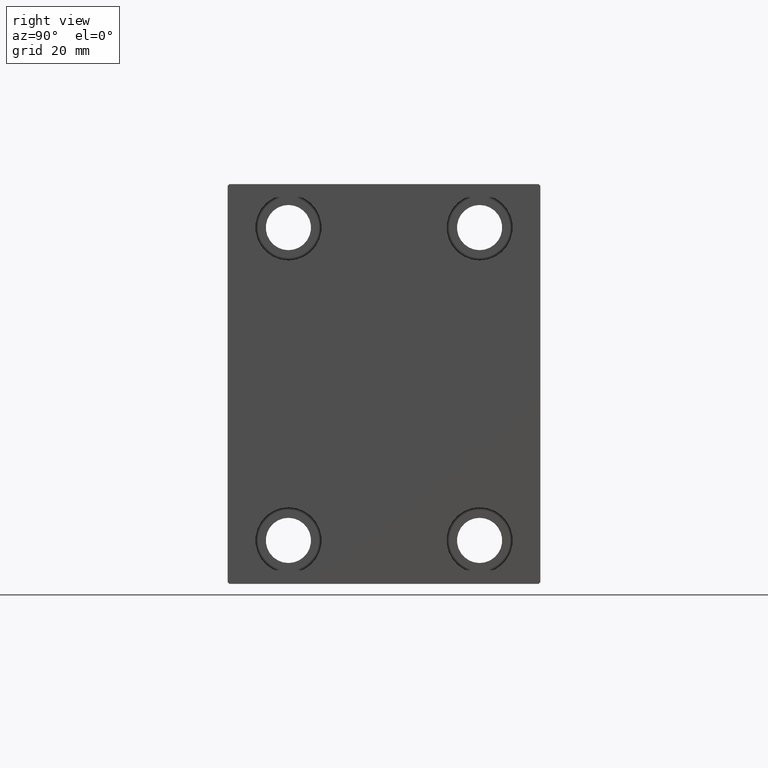
[diagram: clean part render]
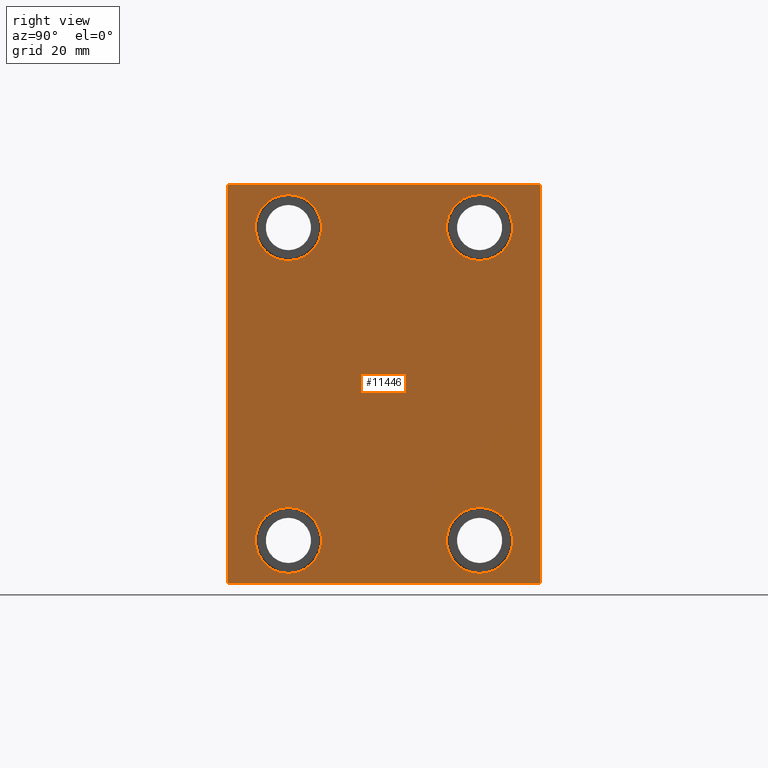
[diagram: same view with one face highlighted and labeled with its STEP entity id]
A machine part, right view. The second image highlights one B-rep face of the part: STEP entity #11446.
In plain terms, the highlighted planar face has unit normal (1, 0, 0).
Its self-contained STEP definition (entity closure, byte-faithful):
#213 = CARTESIAN_POINT ( 'NONE',  ( 138.0000000000000000, -27.50000000000000000, -44.99999999999998579 ) ) ;
#312 = EDGE_CURVE ( 'NONE', #6435, #19124, #43789, .T. ) ;
#348 = CARTESIAN_POINT ( 'NONE',  ( 138.0000000000000000, 27.50000000000001066, 35.50000000000000711 ) ) ;
#794 = VECTOR ( 'NONE', #43794, 1000.000000000000000 ) ;
#1170 = CARTESIAN_POINT ( 'NONE',  ( 138.0000000000000000, -51.00000000000000711, 51.00000000000000711 ) ) ;
#1587 = LINE ( 'NONE', #15206, #11870 ) ;
#1802 = VERTEX_POINT ( 'NONE', #26757 ) ;
#1914 = CARTESIAN_POINT ( 'NONE',  ( 138.0000000000000000, 51.00000000000000000, 51.00000000000000000 ) ) ;
#2582 = EDGE_LOOP ( 'NONE', ( #33679, #43405 ) ) ;
#2634 = VECTOR ( 'NONE', #11211, 1000.000000000000114 ) ;
#2945 = EDGE_CURVE ( 'NONE', #19124, #6435, #31014, .T. ) ;
#3325 = FACE_BOUND ( 'NONE', #14900, .T. ) ;
#3845 = EDGE_CURVE ( 'NONE', #40996, #29335, #5996, .T. ) ;
#4017 = DIRECTION ( 'NONE',  ( -1.000000000000000000, -0.000000000000000000, -0.000000000000000000 ) ) ;
#4661 = CIRCLE ( 'NONE', #12495, 9.500000000000001776 ) ;
#5176 = EDGE_CURVE ( 'NONE', #20165, #24768, #1587, .T. ) ;
#5611 = AXIS2_PLACEMENT_3D ( 'NONE', #5682, #8793, #36427 ) ;
#5639 = DIRECTION ( 'NONE',  ( 0.000000000000000000, 1.000000000000000000, 0.000000000000000000 ) ) ;
#5682 = CARTESIAN_POINT ( 'NONE',  ( 138.0000000000000000, -27.49999999999998934, 45.00000000000000711 ) ) ;
#5831 = ORIENTED_EDGE ( 'NONE', *, *, #34520, .T. ) ;
#5996 = LINE ( 'NONE', #22947, #34600 ) ;
#6069 = CARTESIAN_POINT ( 'NONE',  ( 138.0000000000000000, 45.00000000000001421, -57.50000000000000711 ) ) ;
#6435 = VERTEX_POINT ( 'NONE', #33123 ) ;
#7000 = EDGE_CURVE ( 'NONE', #26382, #8932, #18121, .T. ) ;
#7462 = CARTESIAN_POINT ( 'NONE',  ( 138.0000000000000000, -45.00000000000000000, -57.00000000000000711 ) ) ;
#8459 = VERTEX_POINT ( 'NONE', #9080 ) ;
#8606 = CARTESIAN_POINT ( 'NONE',  ( 138.0000000000000000, -27.50000000000000000, -44.99999999999998579 ) ) ;
#8793 = DIRECTION ( 'NONE',  ( -1.000000000000000000, -0.000000000000000000, -0.000000000000000000 ) ) ;
#8810 = DIRECTION ( 'NONE',  ( 0.000000000000000000, 0.000000000000000000, 1.000000000000000000 ) ) ;
#8932 = VERTEX_POINT ( 'NONE', #24611 ) ;
#9080 = CARTESIAN_POINT ( 'NONE',  ( 138.0000000000000000, -27.49999999999998934, 54.50000000000000711 ) ) ;
#9127 = EDGE_LOOP ( 'NONE', ( #29498, #36012 ) ) ;
#9236 = CIRCLE ( 'NONE', #22066, 9.500000000000001776 ) ;
#9414 = CARTESIAN_POINT ( 'NONE',  ( 138.0000000000000000, -44.50000000000000000, 57.49999999999999289 ) ) ;
#9492 = VERTEX_POINT ( 'NONE', #41856 ) ;
#9551 = DIRECTION ( 'NONE',  ( -0.000000000000000000, 0.7071067811865474617, -0.7071067811865474617 ) ) ;
#9655 = VERTEX_POINT ( 'NONE', #35598 ) ;
#9659 = EDGE_CURVE ( 'NONE', #43342, #15452, #12570, .T. ) ;
#9678 = ORIENTED_EDGE ( 'NONE', *, *, #43047, .T. ) ;
#10393 = DIRECTION ( 'NONE',  ( -1.000000000000000000, -0.000000000000000000, -0.000000000000000000 ) ) ;
#10995 = CARTESIAN_POINT ( 'NONE',  ( 138.0000000000000000, 45.00000000000001421, -57.00000000000000711 ) ) ;
#11211 = DIRECTION ( 'NONE',  ( 0.000000000000000000, -0.7071067811865474617, -0.7071067811865474617 ) ) ;
#11265 = AXIS2_PLACEMENT_3D ( 'NONE', #16939, #24276, #14467 ) ;
#11312 = ORIENTED_EDGE ( 'NONE', *, *, #28043, .T. ) ;
#11446 = ADVANCED_FACE ( 'NONE', ( #3325, #20494, #37639, #40763, #34079 ), #33857, .T. ) ;
#11870 = VECTOR ( 'NONE', #28774, 1000.000000000000114 ) ;
#12175 = CIRCLE ( 'NONE', #37765, 9.500000000000001776 ) ;
#12310 = ORIENTED_EDGE ( 'NONE', *, *, #7000, .T. ) ;
#12431 = DIRECTION ( 'NONE',  ( 0.000000000000000000, -1.000000000000000000, -1.541976423090495387E-16 ) ) ;
#12495 = AXIS2_PLACEMENT_3D ( 'NONE', #32673, #39567, #8810 ) ;
#12570 = CIRCLE ( 'NONE', #37458, 9.500000000000001776 ) ;
#12958 = CARTESIAN_POINT ( 'NONE',  ( 138.0000000000000000, 45.00000000000000000, 56.99999999999997868 ) ) ;
#13535 = DIRECTION ( 'NONE',  ( 0.000000000000000000, 0.000000000000000000, 1.000000000000000000 ) ) ;
#14131 = CARTESIAN_POINT ( 'NONE',  ( 138.0000000000000000, -45.00000000000000000, 57.49999999999999289 ) ) ;
#14467 = DIRECTION ( 'NONE',  ( 0.000000000000000000, 0.000000000000000000, -1.000000000000000000 ) ) ;
#14900 = EDGE_LOOP ( 'NONE', ( #15268, #32478 ) ) ;
#15101 = LINE ( 'NONE', #1914, #21179 ) ;
#15206 = CARTESIAN_POINT ( 'NONE',  ( 138.0000000000000000, 51.00000000000000711, -51.00000000000000711 ) ) ;
#15268 = ORIENTED_EDGE ( 'NONE', *, *, #312, .T. ) ;
#15452 = VERTEX_POINT ( 'NONE', #348 ) ;
#16028 = CARTESIAN_POINT ( 'NONE',  ( 138.0000000000000000, 27.49999999999998934, -44.99999999999998579 ) ) ;
#16213 = ORIENTED_EDGE ( 'NONE', *, *, #34330, .T. ) ;
#16611 = LINE ( 'NONE', #14131, #794 ) ;
#16624 = EDGE_CURVE ( 'NONE', #8459, #9492, #4661, .T. ) ;
#16939 = CARTESIAN_POINT ( 'NONE',  ( 138.0000000000000000, 0.000000000000000000, 0.000000000000000000 ) ) ;
#18121 = LINE ( 'NONE', #1170, #2634 ) ;
#18376 = LINE ( 'NONE', #42208, #22580 ) ;
#18495 = CARTESIAN_POINT ( 'NONE',  ( 138.0000000000000000, -44.50000000000000000, -57.50000000000000711 ) ) ;
#18799 = DIRECTION ( 'NONE',  ( 0.000000000000000000, -1.206764157201257045E-16, 1.000000000000000000 ) ) ;
#19124 = VERTEX_POINT ( 'NONE', #33846 ) ;
#19342 = CARTESIAN_POINT ( 'NONE',  ( 138.0000000000000000, 44.49999999999998579, -57.50000000000000711 ) ) ;
#20028 = ORIENTED_EDGE ( 'NONE', *, *, #3845, .T. ) ;
#20165 = VERTEX_POINT ( 'NONE', #19342 ) ;
#20221 = CARTESIAN_POINT ( 'NONE',  ( 138.0000000000000000, 45.00000000000000000, 57.50000000000000711 ) ) ;
#20494 = FACE_BOUND ( 'NONE', #2582, .T. ) ;
#21007 = ORIENTED_EDGE ( 'NONE', *, *, #9659, .T. ) ;
#21179 = VECTOR ( 'NONE', #31802, 1000.000000000000114 ) ;
#22066 = AXIS2_PLACEMENT_3D ( 'NONE', #24000, #10393, #13535 ) ;
#22430 = DIRECTION ( 'NONE',  ( -1.000000000000000000, -0.000000000000000000, -0.000000000000000000 ) ) ;
#22445 = DIRECTION ( 'NONE',  ( -1.000000000000000000, -0.000000000000000000, -0.000000000000000000 ) ) ;
#22580 = VECTOR ( 'NONE', #5639, 1000.000000000000000 ) ;
#22947 = CARTESIAN_POINT ( 'NONE',  ( 138.0000000000000000, -51.00000000000000000, -51.00000000000000000 ) ) ;
#24000 = CARTESIAN_POINT ( 'NONE',  ( 138.0000000000000000, 27.50000000000001066, 45.00000000000000711 ) ) ;
#24276 = DIRECTION ( 'NONE',  ( 1.000000000000000000, 0.000000000000000000, 0.000000000000000000 ) ) ;
#24611 = CARTESIAN_POINT ( 'NONE',  ( 138.0000000000000000, -45.00000000000000000, 57.00000000000002132 ) ) ;
#24768 = VERTEX_POINT ( 'NONE', #10995 ) ;
#25345 = EDGE_LOOP ( 'NONE', ( #16213, #12310, #9678, #20028, #35998, #43175, #27659, #11312 ) ) ;
#25716 = VECTOR ( 'NONE', #18799, 1000.000000000000000 ) ;
#26184 = EDGE_CURVE ( 'NONE', #29335, #20165, #18376, .T. ) ;
#26382 = VERTEX_POINT ( 'NONE', #9414 ) ;
#26757 = CARTESIAN_POINT ( 'NONE',  ( 138.0000000000000000, 44.50000000000000000, 57.50000000000000711 ) ) ;
#27659 = ORIENTED_EDGE ( 'NONE', *, *, #43319, .T. ) ;
#28043 = EDGE_CURVE ( 'NONE', #39419, #1802, #15101, .T. ) ;
#28686 = DIRECTION ( 'NONE',  ( 0.000000000000000000, 0.000000000000000000, 1.000000000000000000 ) ) ;
#28774 = DIRECTION ( 'NONE',  ( -0.000000000000000000, 0.7071067811865474617, 0.7071067811865474617 ) ) ;
#29239 = AXIS2_PLACEMENT_3D ( 'NONE', #213, #4017, #30982 ) ;
#29335 = VERTEX_POINT ( 'NONE', #18495 ) ;
#29498 = ORIENTED_EDGE ( 'NONE', *, *, #38247, .T. ) ;
#30462 = LINE ( 'NONE', #20221, #38414 ) ;
#30682 = CIRCLE ( 'NONE', #29239, 9.500000000000001776 ) ;
#30982 = DIRECTION ( 'NONE',  ( 0.000000000000000000, 0.000000000000000000, 1.000000000000000000 ) ) ;
#31014 = CIRCLE ( 'NONE', #41678, 9.500000000000001776 ) ;
#31449 = EDGE_LOOP ( 'NONE', ( #5831, #21007 ) ) ;
#31802 = DIRECTION ( 'NONE',  ( -0.000000000000000000, -0.7071067811865474617, 0.7071067811865474617 ) ) ;
#32161 = CARTESIAN_POINT ( 'NONE',  ( 138.0000000000000000, 27.49999999999998934, -44.99999999999998579 ) ) ;
#32440 = EDGE_CURVE ( 'NONE', #9492, #8459, #42620, .T. ) ;
#32478 = ORIENTED_EDGE ( 'NONE', *, *, #2945, .T. ) ;
#32673 = CARTESIAN_POINT ( 'NONE',  ( 138.0000000000000000, -27.49999999999998934, 45.00000000000000711 ) ) ;
#33110 = CARTESIAN_POINT ( 'NONE',  ( 138.0000000000000000, -27.50000000000000000, -35.49999999999998579 ) ) ;
#33123 = CARTESIAN_POINT ( 'NONE',  ( 138.0000000000000000, 27.49999999999998934, -54.49999999999998579 ) ) ;
#33679 = ORIENTED_EDGE ( 'NONE', *, *, #32440, .T. ) ;
#33846 = CARTESIAN_POINT ( 'NONE',  ( 138.0000000000000000, 27.49999999999998934, -35.49999999999998579 ) ) ;
#33857 = PLANE ( 'NONE',  #11265 ) ;
#34079 = FACE_OUTER_BOUND ( 'NONE', #25345, .T. ) ;
#34330 = EDGE_CURVE ( 'NONE', #1802, #26382, #30462, .T. ) ;
#34520 = EDGE_CURVE ( 'NONE', #15452, #43342, #9236, .T. ) ;
#34600 = VECTOR ( 'NONE', #9551, 1000.000000000000114 ) ;
#35376 = CARTESIAN_POINT ( 'NONE',  ( 138.0000000000000000, 27.50000000000001066, 45.00000000000000711 ) ) ;
#35580 = DIRECTION ( 'NONE',  ( 0.000000000000000000, 0.000000000000000000, 1.000000000000000000 ) ) ;
#35598 = CARTESIAN_POINT ( 'NONE',  ( 138.0000000000000000, -27.50000000000000000, -54.49999999999998579 ) ) ;
#35713 = DIRECTION ( 'NONE',  ( 0.000000000000000000, 0.000000000000000000, 1.000000000000000000 ) ) ;
#35721 = LINE ( 'NONE', #6069, #25716 ) ;
#35998 = ORIENTED_EDGE ( 'NONE', *, *, #26184, .T. ) ;
#36012 = ORIENTED_EDGE ( 'NONE', *, *, #36548, .T. ) ;
#36427 = DIRECTION ( 'NONE',  ( 0.000000000000000000, 0.000000000000000000, 1.000000000000000000 ) ) ;
#36548 = EDGE_CURVE ( 'NONE', #38727, #9655, #12175, .T. ) ;
#37458 = AXIS2_PLACEMENT_3D ( 'NONE', #35376, #22445, #28686 ) ;
#37639 = FACE_BOUND ( 'NONE', #31449, .T. ) ;
#37765 = AXIS2_PLACEMENT_3D ( 'NONE', #8606, #22430, #35580 ) ;
#38247 = EDGE_CURVE ( 'NONE', #9655, #38727, #30682, .T. ) ;
#38414 = VECTOR ( 'NONE', #12431, 1000.000000000000000 ) ;
#38727 = VERTEX_POINT ( 'NONE', #33110 ) ;
#39419 = VERTEX_POINT ( 'NONE', #12958 ) ;
#39567 = DIRECTION ( 'NONE',  ( -1.000000000000000000, -0.000000000000000000, -0.000000000000000000 ) ) ;
#39866 = DIRECTION ( 'NONE',  ( 0.000000000000000000, 0.000000000000000000, 1.000000000000000000 ) ) ;
#40308 = DIRECTION ( 'NONE',  ( -1.000000000000000000, -0.000000000000000000, -0.000000000000000000 ) ) ;
#40763 = FACE_BOUND ( 'NONE', #9127, .T. ) ;
#40996 = VERTEX_POINT ( 'NONE', #7462 ) ;
#41616 = AXIS2_PLACEMENT_3D ( 'NONE', #32161, #42409, #35713 ) ;
#41678 = AXIS2_PLACEMENT_3D ( 'NONE', #16028, #40308, #39866 ) ;
#41856 = CARTESIAN_POINT ( 'NONE',  ( 138.0000000000000000, -27.49999999999998934, 35.50000000000000711 ) ) ;
#42208 = CARTESIAN_POINT ( 'NONE',  ( 138.0000000000000000, -45.00000000000000000, -57.50000000000000711 ) ) ;
#42409 = DIRECTION ( 'NONE',  ( -1.000000000000000000, -0.000000000000000000, -0.000000000000000000 ) ) ;
#42620 = CIRCLE ( 'NONE', #5611, 9.500000000000001776 ) ;
#42642 = CARTESIAN_POINT ( 'NONE',  ( 138.0000000000000000, 27.50000000000001066, 54.50000000000000711 ) ) ;
#43047 = EDGE_CURVE ( 'NONE', #8932, #40996, #16611, .T. ) ;
#43175 = ORIENTED_EDGE ( 'NONE', *, *, #5176, .T. ) ;
#43319 = EDGE_CURVE ( 'NONE', #24768, #39419, #35721, .T. ) ;
#43342 = VERTEX_POINT ( 'NONE', #42642 ) ;
#43405 = ORIENTED_EDGE ( 'NONE', *, *, #16624, .T. ) ;
#43789 = CIRCLE ( 'NONE', #41616, 9.500000000000001776 ) ;
#43794 = DIRECTION ( 'NONE',  ( 0.000000000000000000, 0.000000000000000000, -1.000000000000000000 ) ) ;